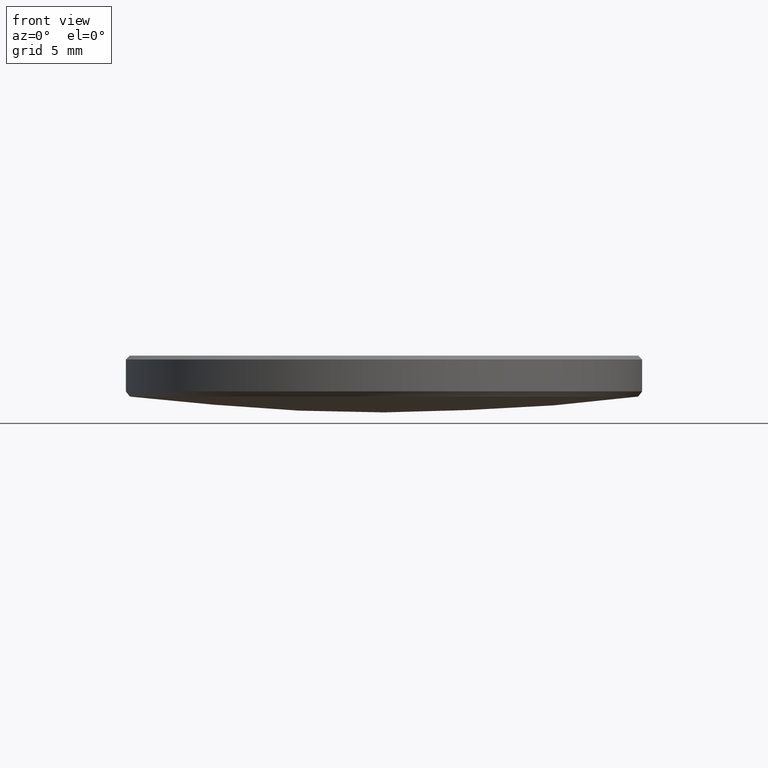
[diagram: clean part render]
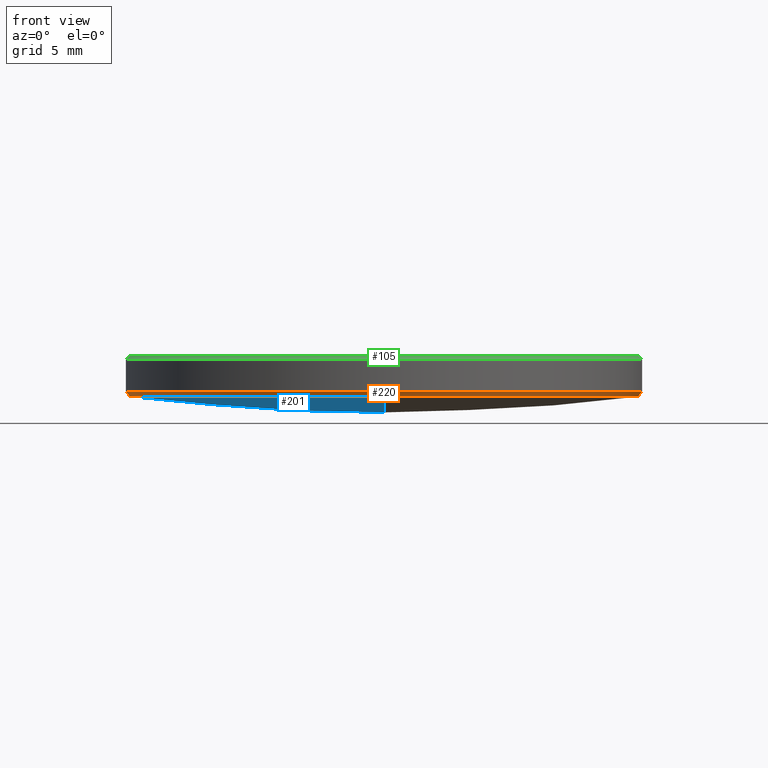
[diagram: same view with three faces highlighted in distinct colors, each labeled with its STEP entity id]
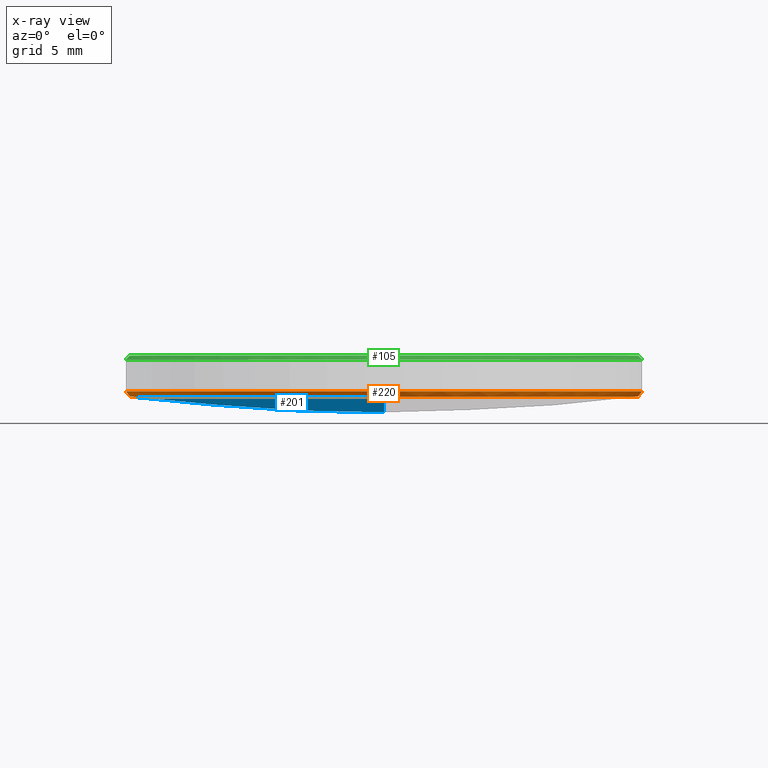
[diagram: x-ray of the same camera — body ghosted, the three highlighted faces saturated]
A machine part, front view with three faces highlighted in distinct colors.
The next image is the same camera in x-ray (body ghosted, the three faces saturated) — at least one of them is partly hidden behind the body in this view.
Their STEP definitions:

[orange] entity #220 — the highlighted conical surface has half-angle 37.768 deg.
#1 = CARTESIAN_POINT ( 'NONE',  ( 0.000000000000000000, 0.000000000000000000, 4.230902662384877999 ) ) ;
#3 = CARTESIAN_POINT ( 'NONE',  ( 12.69999999999999929, 1.555301434917138433E-15, 4.230902662384877999 ) ) ;
#8 = EDGE_CURVE ( 'NONE', #300, #298, #254, .T. ) ;
#11 = DIRECTION ( 'NONE',  ( -0.6124717436197836262, 7.500615603921663668E-17, 0.7904924814742655403 ) ) ;
#15 = ORIENTED_EDGE ( 'NONE', *, *, #280, .F. ) ;
#21 = DIRECTION ( 'NONE',  ( -0.000000000000000000, -0.000000000000000000, 1.000000000000000000 ) ) ;
#24 = CARTESIAN_POINT ( 'NONE',  ( 12.69999999999999929, 0.000000000000000000, 4.230902662384877999 ) ) ;
#26 = DIRECTION ( 'NONE',  ( 1.000000000000000000, 0.000000000000000000, 0.000000000000000000 ) ) ;
#29 = LINE ( 'NONE', #24, #90 ) ;
#30 = CARTESIAN_POINT ( 'NONE',  ( -12.50176226215777930, 1.543162874361204192E-15, 3.975045240485544529 ) ) ;
#31 = AXIS2_PLACEMENT_3D ( 'NONE', #1, #21, #250 ) ;
#47 = CARTESIAN_POINT ( 'NONE',  ( -12.69999999999999929, 0.000000000000000000, 4.230902662384877999 ) ) ;
#62 = DIRECTION ( 'NONE',  ( -1.000000000000000000, 0.000000000000000000, 0.000000000000000000 ) ) ;
#63 = ORIENTED_EDGE ( 'NONE', *, *, #283, .T. ) ;
#66 = CARTESIAN_POINT ( 'NONE',  ( 0.000000000000000000, 0.000000000000000000, 4.230902662384877999 ) ) ;
#78 = DIRECTION ( 'NONE',  ( 1.000000000000000000, 0.000000000000000000, 0.000000000000000000 ) ) ;
#89 = LINE ( 'NONE', #210, #282 ) ;
#90 = VECTOR ( 'NONE', #277, 1000.000000000000000 ) ;
#93 = CARTESIAN_POINT ( 'NONE',  ( 12.50176226215777930, 0.000000000000000000, 3.975045240485544529 ) ) ;
#98 = CARTESIAN_POINT ( 'NONE',  ( 0.000000000000000000, 0.000000000000000000, 3.975045240485544529 ) ) ;
#113 = FACE_OUTER_BOUND ( 'NONE', #188, .T. ) ;
#116 = ORIENTED_EDGE ( 'NONE', *, *, #8, .F. ) ;
#135 = ORIENTED_EDGE ( 'NONE', *, *, #209, .F. ) ;
#141 = AXIS2_PLACEMENT_3D ( 'NONE', #66, #312, #62 ) ;
#174 = EDGE_CURVE ( 'NONE', #290, #187, #330, .T. ) ;
#187 = VERTEX_POINT ( 'NONE', #3 ) ;
#188 = EDGE_LOOP ( 'NONE', ( #135, #116, #15, #63, #190 ) ) ;
#190 = ORIENTED_EDGE ( 'NONE', *, *, #174, .F. ) ;
#197 = DIRECTION ( 'NONE',  ( 0.000000000000000000, 0.000000000000000000, -1.000000000000000000 ) ) ;
#209 = EDGE_CURVE ( 'NONE', #298, #290, #89, .T. ) ;
#210 = CARTESIAN_POINT ( 'NONE',  ( -12.69999999999999929, 1.555301434917138433E-15, 4.230902662384877999 ) ) ;
#216 = VERTEX_POINT ( 'NONE', #93 ) ;
#220 = ADVANCED_FACE ( 'NONE', ( #113 ), #257, .T. ) ;
#230 = CIRCLE ( 'NONE', #261, 12.50176226215777930 ) ;
#250 = DIRECTION ( 'NONE',  ( 1.000000000000000000, 0.000000000000000000, 0.000000000000000000 ) ) ;
#253 = CARTESIAN_POINT ( 'NONE',  ( -1.531024313805262852E-15, -12.50176226215772068, 3.975045240485544529 ) ) ;
#254 = CIRCLE ( 'NONE', #264, 12.50176226215777930 ) ;
#257 = CONICAL_SURFACE ( 'NONE', #31, 12.69999999999999929, 0.6591836576304348494 ) ;
#260 = CARTESIAN_POINT ( 'NONE',  ( 0.000000000000000000, 0.000000000000000000, 3.975045240485544529 ) ) ;
#261 = AXIS2_PLACEMENT_3D ( 'NONE', #260, #299, #78 ) ;
#264 = AXIS2_PLACEMENT_3D ( 'NONE', #98, #197, #26 ) ;
#277 = DIRECTION ( 'NONE',  ( 0.6124717436197836262, 0.000000000000000000, 0.7904924814742655403 ) ) ;
#280 = EDGE_CURVE ( 'NONE', #216, #300, #230, .T. ) ;
#282 = VECTOR ( 'NONE', #11, 1000.000000000000000 ) ;
#283 = EDGE_CURVE ( 'NONE', #216, #187, #29, .T. ) ;
#290 = VERTEX_POINT ( 'NONE', #47 ) ;
#298 = VERTEX_POINT ( 'NONE', #30 ) ;
#299 = DIRECTION ( 'NONE',  ( 0.000000000000000000, 0.000000000000000000, -1.000000000000000000 ) ) ;
#300 = VERTEX_POINT ( 'NONE', #253 ) ;
#312 = DIRECTION ( 'NONE',  ( -0.000000000000000000, -0.000000000000000000, 1.000000000000000000 ) ) ;
#330 = CIRCLE ( 'NONE', #141, 12.69999999999999929 ) ;

[blue] entity #201 — the highlighted spherical surface has radius 100.89 mm.
#2 = EDGE_CURVE ( 'NONE', #298, #163, #51, .T. ) ;
#8 = EDGE_CURVE ( 'NONE', #300, #298, #254, .T. ) ;
#18 = DIRECTION ( 'NONE',  ( 1.000000000000000000, 0.000000000000000000, 0.000000000000000000 ) ) ;
#23 = DIRECTION ( 'NONE',  ( -1.000000000000000000, 1.224646799147353207E-16, 0.000000000000000000 ) ) ;
#26 = DIRECTION ( 'NONE',  ( 1.000000000000000000, 0.000000000000000000, 0.000000000000000000 ) ) ;
#30 = CARTESIAN_POINT ( 'NONE',  ( -12.50176226215777930, 1.543162874361204192E-15, 3.975045240485544529 ) ) ;
#34 = DIRECTION ( 'NONE',  ( 0.000000000000000000, 0.000000000000000000, -1.000000000000000000 ) ) ;
#46 = DIRECTION ( 'NONE',  ( 1.000000000000000000, -0.000000000000000000, 0.000000000000000000 ) ) ;
#51 = CIRCLE ( 'NONE', #233, 12.50176226215777930 ) ;
#57 = EDGE_CURVE ( 'NONE', #293, #300, #96, .T. ) ;
#61 = ORIENTED_EDGE ( 'NONE', *, *, #2, .T. ) ;
#87 = DIRECTION ( 'NONE',  ( -1.000000000000000000, 0.000000000000000000, 0.000000000000000000 ) ) ;
#96 = CIRCLE ( 'NONE', #177, 100.8900000000000006 ) ;
#98 = CARTESIAN_POINT ( 'NONE',  ( 0.000000000000000000, 0.000000000000000000, 3.975045240485544529 ) ) ;
#99 = CARTESIAN_POINT ( 'NONE',  ( 0.000000000000000000, 0.000000000000000000, 104.0874722430335027 ) ) ;
#119 = DIRECTION ( 'NONE',  ( 0.000000000000000000, 0.000000000000000000, -1.000000000000000000 ) ) ;
#139 = FACE_OUTER_BOUND ( 'NONE', #212, .T. ) ;
#142 = CARTESIAN_POINT ( 'NONE',  ( 0.000000000000000000, 0.000000000000000000, 104.0874722430335027 ) ) ;
#148 = CARTESIAN_POINT ( 'NONE',  ( 0.000000000000000000, 6.177730778298823983E-15, 3.197472243033488759 ) ) ;
#150 = EDGE_CURVE ( 'NONE', #293, #163, #152, .T. ) ;
#152 = CIRCLE ( 'NONE', #286, 100.8900000000000006 ) ;
#163 = VERTEX_POINT ( 'NONE', #314 ) ;
#171 = CARTESIAN_POINT ( 'NONE',  ( 0.000000000000000000, 0.000000000000000000, 3.975045240485544529 ) ) ;
#177 = AXIS2_PLACEMENT_3D ( 'NONE', #142, #23, #194 ) ;
#194 = DIRECTION ( 'NONE',  ( -1.224646799147353454E-16, -1.000000000000000000, 0.000000000000000000 ) ) ;
#197 = DIRECTION ( 'NONE',  ( 0.000000000000000000, 0.000000000000000000, -1.000000000000000000 ) ) ;
#201 = ADVANCED_FACE ( 'NONE', ( #139 ), #245, .T. ) ;
#212 = EDGE_LOOP ( 'NONE', ( #221, #276, #289, #61 ) ) ;
#221 = ORIENTED_EDGE ( 'NONE', *, *, #150, .F. ) ;
#233 = AXIS2_PLACEMENT_3D ( 'NONE', #171, #119, #18 ) ;
#242 = CARTESIAN_POINT ( 'NONE',  ( 0.000000000000000000, 0.000000000000000000, 104.0874722430335027 ) ) ;
#245 = SPHERICAL_SURFACE ( 'NONE', #310, 100.8900000000000006 ) ;
#253 = CARTESIAN_POINT ( 'NONE',  ( -1.531024313805262852E-15, -12.50176226215772068, 3.975045240485544529 ) ) ;
#254 = CIRCLE ( 'NONE', #264, 12.50176226215777930 ) ;
#264 = AXIS2_PLACEMENT_3D ( 'NONE', #98, #197, #26 ) ;
#265 = DIRECTION ( 'NONE',  ( 0.000000000000000000, 1.000000000000000000, 0.000000000000000000 ) ) ;
#276 = ORIENTED_EDGE ( 'NONE', *, *, #57, .T. ) ;
#286 = AXIS2_PLACEMENT_3D ( 'NONE', #99, #46, #34 ) ;
#289 = ORIENTED_EDGE ( 'NONE', *, *, #8, .T. ) ;
#293 = VERTEX_POINT ( 'NONE', #148 ) ;
#298 = VERTEX_POINT ( 'NONE', #30 ) ;
#300 = VERTEX_POINT ( 'NONE', #253 ) ;
#310 = AXIS2_PLACEMENT_3D ( 'NONE', #242, #87, #265 ) ;
#314 = CARTESIAN_POINT ( 'NONE',  ( 0.000000000000000000, 12.50176226215772068, 3.975045240485544529 ) ) ;

[green] entity #105 — the highlighted conical surface has half-angle 45 deg.
#4 = CONICAL_SURFACE ( 'NONE', #111, 12.50838802109488590, 0.7853981633974710386 ) ;
#13 = VERTEX_POINT ( 'NONE', #19 ) ;
#17 = AXIS2_PLACEMENT_3D ( 'NONE', #102, #218, #144 ) ;
#19 = CARTESIAN_POINT ( 'NONE',  ( -1.531835735252623078E-15, -12.50838802109430148, 5.991611978905075908 ) ) ;
#35 = EDGE_CURVE ( 'NONE', #38, #244, #226, .T. ) ;
#38 = VERTEX_POINT ( 'NONE', #48 ) ;
#45 = AXIS2_PLACEMENT_3D ( 'NONE', #196, #304, #228 ) ;
#48 = CARTESIAN_POINT ( 'NONE',  ( -12.50838802109486103, 0.000000000000000000, 5.991611978905075908 ) ) ;
#54 = DIRECTION ( 'NONE',  ( 0.7071067811865635599, 8.659560562355128841E-17, -0.7071067811865314745 ) ) ;
#58 = EDGE_CURVE ( 'NONE', #38, #13, #158, .T. ) ;
#65 = ORIENTED_EDGE ( 'NONE', *, *, #332, .F. ) ;
#69 = AXIS2_PLACEMENT_3D ( 'NONE', #301, #80, #104 ) ;
#70 = ORIENTED_EDGE ( 'NONE', *, *, #273, .F. ) ;
#71 = VERTEX_POINT ( 'NONE', #124 ) ;
#76 = CIRCLE ( 'NONE', #45, 12.69999999999999929 ) ;
#77 = ORIENTED_EDGE ( 'NONE', *, *, #58, .F. ) ;
#79 = FACE_OUTER_BOUND ( 'NONE', #251, .T. ) ;
#80 = DIRECTION ( 'NONE',  ( -0.000000000000000000, -0.000000000000000000, 1.000000000000000000 ) ) ;
#102 = CARTESIAN_POINT ( 'NONE',  ( 0.000000000000000000, 0.000000000000000000, 5.991611978905075908 ) ) ;
#104 = DIRECTION ( 'NONE',  ( 1.000000000000000000, 0.000000000000000000, 0.000000000000000000 ) ) ;
#105 = ADVANCED_FACE ( 'NONE', ( #79 ), #4, .T. ) ;
#109 = VECTOR ( 'NONE', #126, 1000.000000000000000 ) ;
#111 = AXIS2_PLACEMENT_3D ( 'NONE', #247, #173, #275 ) ;
#124 = CARTESIAN_POINT ( 'NONE',  ( 12.69999999999999929, 1.555301434917138433E-15, 5.800000000000027356 ) ) ;
#126 = DIRECTION ( 'NONE',  ( -0.7071067811865635599, 0.000000000000000000, -0.7071067811865314745 ) ) ;
#144 = DIRECTION ( 'NONE',  ( 1.000000000000000000, 0.000000000000000000, 0.000000000000000000 ) ) ;
#154 = CARTESIAN_POINT ( 'NONE',  ( -12.69999999999999929, 0.000000000000000000, 5.800000000000027356 ) ) ;
#158 = CIRCLE ( 'NONE', #17, 12.50838802109486103 ) ;
#173 = DIRECTION ( 'NONE',  ( 0.000000000000000000, 0.000000000000000000, -1.000000000000000000 ) ) ;
#180 = VECTOR ( 'NONE', #54, 1000.000000000000000 ) ;
#191 = ORIENTED_EDGE ( 'NONE', *, *, #313, .F. ) ;
#193 = CARTESIAN_POINT ( 'NONE',  ( -12.50838802109488590, 0.000000000000000000, 5.991611978905131863 ) ) ;
#196 = CARTESIAN_POINT ( 'NONE',  ( 0.000000000000000000, 0.000000000000000000, 5.800000000000027356 ) ) ;
#202 = LINE ( 'NONE', #256, #180 ) ;
#218 = DIRECTION ( 'NONE',  ( -0.000000000000000000, -0.000000000000000000, 1.000000000000000000 ) ) ;
#224 = CIRCLE ( 'NONE', #69, 12.50838802109486103 ) ;
#226 = LINE ( 'NONE', #193, #109 ) ;
#228 = DIRECTION ( 'NONE',  ( 1.000000000000000000, 0.000000000000000000, 0.000000000000000000 ) ) ;
#244 = VERTEX_POINT ( 'NONE', #154 ) ;
#247 = CARTESIAN_POINT ( 'NONE',  ( 0.000000000000000000, 0.000000000000000000, 5.991611978905131863 ) ) ;
#251 = EDGE_LOOP ( 'NONE', ( #65, #191, #77, #318, #70 ) ) ;
#256 = CARTESIAN_POINT ( 'NONE',  ( 12.50838802109488590, 1.531835735252694865E-15, 5.991611978905131863 ) ) ;
#273 = EDGE_CURVE ( 'NONE', #71, #244, #76, .T. ) ;
#275 = DIRECTION ( 'NONE',  ( -1.000000000000000000, 0.000000000000000000, 0.000000000000000000 ) ) ;
#279 = CARTESIAN_POINT ( 'NONE',  ( 12.50838802109486103, 1.543568585084915170E-15, 5.991611978905075908 ) ) ;
#301 = CARTESIAN_POINT ( 'NONE',  ( 0.000000000000000000, 0.000000000000000000, 5.991611978905075908 ) ) ;
#304 = DIRECTION ( 'NONE',  ( 0.000000000000000000, 0.000000000000000000, -1.000000000000000000 ) ) ;
#313 = EDGE_CURVE ( 'NONE', #13, #321, #224, .T. ) ;
#318 = ORIENTED_EDGE ( 'NONE', *, *, #35, .T. ) ;
#321 = VERTEX_POINT ( 'NONE', #279 ) ;
#332 = EDGE_CURVE ( 'NONE', #321, #71, #202, .T. ) ;